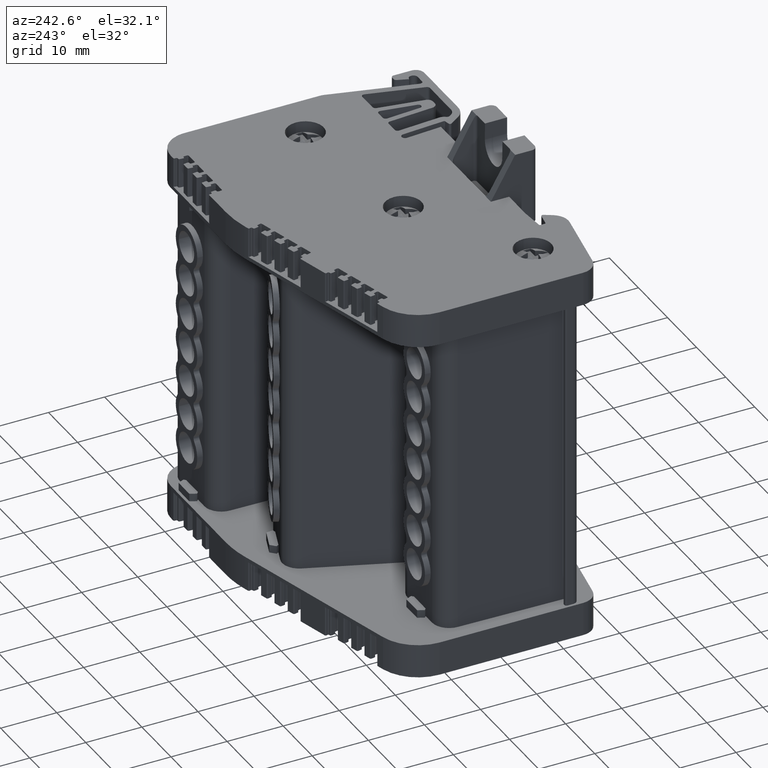
[diagram: clean part render]
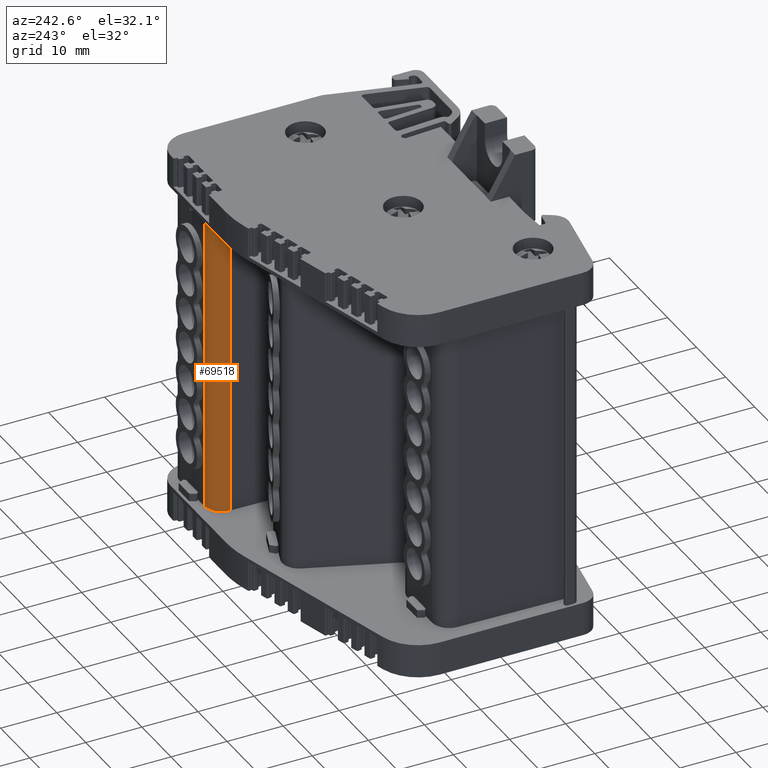
[diagram: same view with one face highlighted and labeled with its STEP entity id]
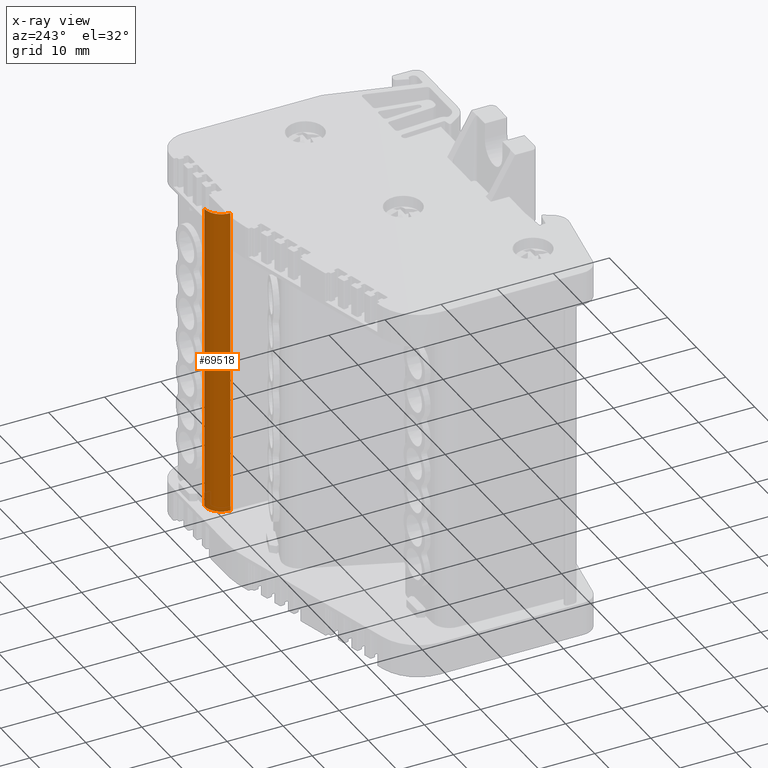
[diagram: x-ray of the same camera — body ghosted, the highlighted face saturated]
A machine part, auxiliary view. The second image highlights one B-rep face of the part: STEP entity #69518.
The next image is the same camera in x-ray: the body ghosted, the highlighted face saturated — about 0% of this face is hidden behind the body in this view.
In plain terms, the highlighted cylindrical surface (edge-blend (fillet) strip) has radius 3.0101 mm, axis along (-0, 0, -1).
Its self-contained STEP definition (entity closure, byte-faithful):
#6167 = FACE_OUTER_BOUND ( 'NONE', #87896, .T. ) ;
#6175 = DIRECTION ( 'NONE',  ( 0.0000000000000000000, 1.000000000000000000, 1.844173418387164300E-014 ) ) ;
#6195 = CYLINDRICAL_SURFACE ( 'NONE', #23748, 3.010083036540323100 ) ;
#6196 = CARTESIAN_POINT ( 'NONE',  ( -277.7089748529356800, 229.1154799740187100, 195.0972931816415900 ) ) ;
#6197 = DIRECTION ( 'NONE',  ( -6.982962677686110500E-015, 1.604252062634190000E-014, -1.000000000000000000 ) ) ;
#11194 = VERTEX_POINT ( 'NONE', #59168 ) ;
#11209 = VERTEX_POINT ( 'NONE', #59268 ) ;
#11285 = VERTEX_POINT ( 'NONE', #63652 ) ;
#11333 = VERTEX_POINT ( 'NONE', #63640 ) ;
#23748 = AXIS2_PLACEMENT_3D ( 'NONE', #6196, #6197, #6175 ) ;
#51740 = DIRECTION ( 'NONE',  ( -3.229646657839724900E-028, -1.604252062634175800E-014, 1.000000000000000000 ) ) ;
#51804 = LINE ( 'NONE', #51822, #68938 ) ;
#51822 = CARTESIAN_POINT ( 'NONE',  ( -277.7089748529367100, 232.1255630105590900, 195.0972931816415900 ) ) ;
#52451 = LINE ( 'NONE', #52543, #69005 ) ;
#52498 = DIRECTION ( 'NONE',  ( -7.260773709496582100E-015, 1.267372765541248700E-016, -1.000000000000000000 ) ) ;
#52543 = CARTESIAN_POINT ( 'NONE',  ( -280.7184647755127600, 229.0557280470700900, 195.0972931816411900 ) ) ;
#53389 = DIRECTION ( 'NONE',  ( -6.982962677686110500E-015, 1.604252062634190000E-014, -1.000000000000000000 ) ) ;
#53392 = DIRECTION ( 'NONE',  ( 0.0000000000000000000, 1.000000000000000000, 1.383130063790373000E-014 ) ) ;
#53409 = CARTESIAN_POINT ( 'NONE',  ( -277.7089748529363100, 229.1154799740202500, 100.1622931816414300 ) ) ;
#55758 = DIRECTION ( 'NONE',  ( 6.982962677686110500E-015, -1.604252062634190000E-014, 1.000000000000000000 ) ) ;
#55773 = CARTESIAN_POINT ( 'NONE',  ( -277.7089748529367100, 229.1154799740211300, 44.61293318655240400 ) ) ;
#55839 = DIRECTION ( 'NONE',  ( 0.0000000000000000000, 1.000000000000000000, 1.613651741088768500E-014 ) ) ;
#59168 = CARTESIAN_POINT ( 'NONE',  ( -280.7184647755134400, 229.0557280470689800, 100.1622931816413000 ) ) ;
#59268 = CARTESIAN_POINT ( 'NONE',  ( -277.7089748529364800, 232.1255630105606300, 100.1622931816414600 ) ) ;
#63640 = CARTESIAN_POINT ( 'NONE',  ( -280.7184647755138900, 229.0557280470699800, 44.61293318655243200 ) ) ;
#63652 = CARTESIAN_POINT ( 'NONE',  ( -277.7089748529366500, 232.1255630105615100, 44.61293318655235400 ) ) ;
#68790 = AXIS2_PLACEMENT_3D ( 'NONE', #53409, #53389, #53392 ) ;
#68824 = CIRCLE ( 'NONE', #68790, 3.010083036540323100 ) ;
#68938 = VECTOR ( 'NONE', #51740, 1000.000000000000000 ) ;
#68993 = AXIS2_PLACEMENT_3D ( 'NONE', #55773, #55758, #55839 ) ;
#69005 = VECTOR ( 'NONE', #52498, 1000.000000000000000 ) ;
#69026 = CIRCLE ( 'NONE', #68993, 3.010083036540323100 ) ;
#69518 = ADVANCED_FACE ( 'NONE', ( #6167 ), #6195, .T. ) ;
#74069 = ORIENTED_EDGE ( 'NONE', *, *, #78227, .T. ) ;
#74131 = ORIENTED_EDGE ( 'NONE', *, *, #78492, .F. ) ;
#74166 = ORIENTED_EDGE ( 'NONE', *, *, #78732, .T. ) ;
#74264 = ORIENTED_EDGE ( 'NONE', *, *, #78683, .F. ) ;
#78227 = EDGE_CURVE ( 'NONE', #11194, #11209, #68824, .T. ) ;
#78492 = EDGE_CURVE ( 'NONE', #11285, #11209, #51804, .T. ) ;
#78683 = EDGE_CURVE ( 'NONE', #11194, #11333, #52451, .T. ) ;
#78732 = EDGE_CURVE ( 'NONE', #11285, #11333, #69026, .T. ) ;
#87896 = EDGE_LOOP ( 'NONE', ( #74069, #74131, #74166, #74264 ) ) ;